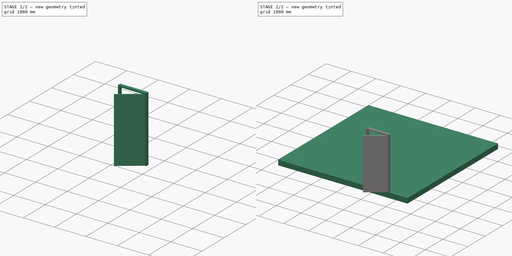
[diagram: build sequence overview — one tinted view per stage of 2, left to right]
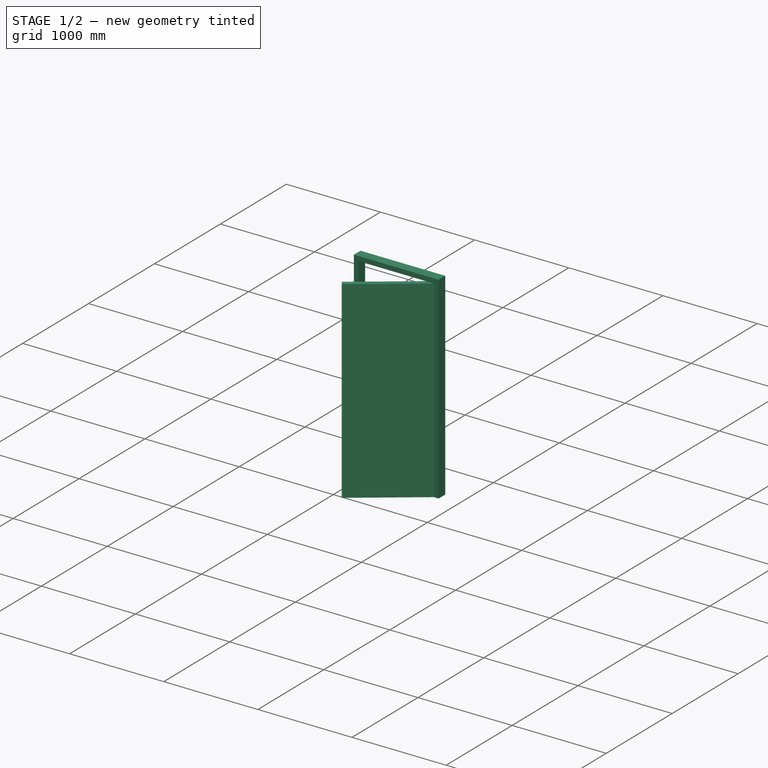
[diagram: stage 1 of 2 — iso view after this stage's code; geometry added in this stage tinted green]
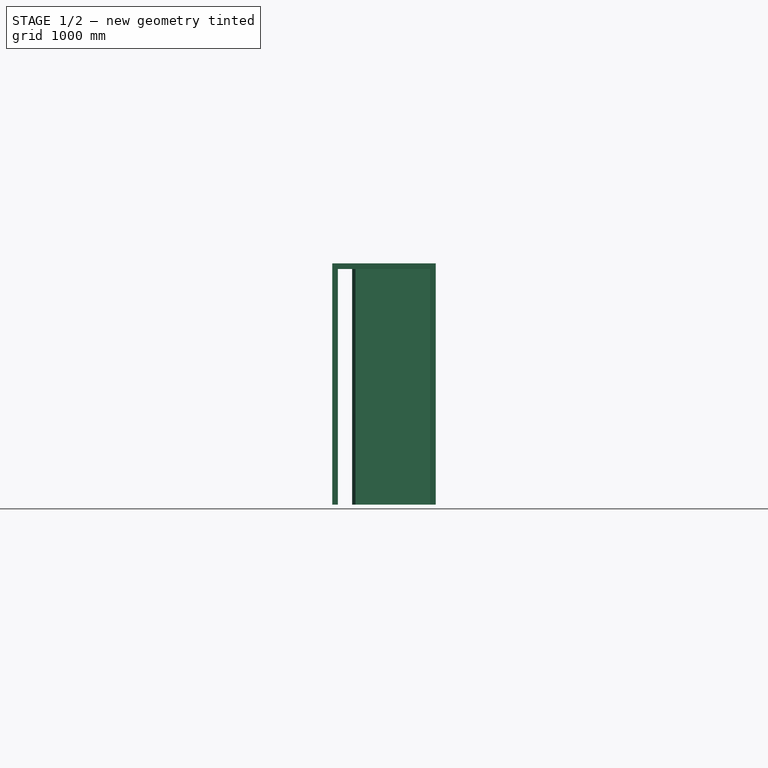
[diagram: stage 1 of 2 — front view after this stage's code; geometry added in this stage tinted green]
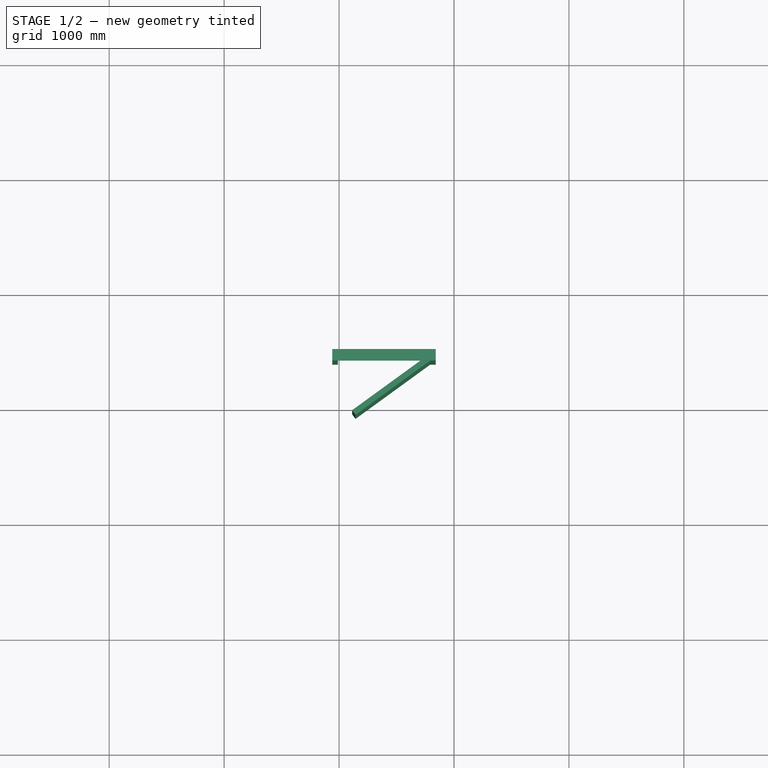
[diagram: stage 1 of 2 — top view after this stage's code; geometry added in this stage tinted green]
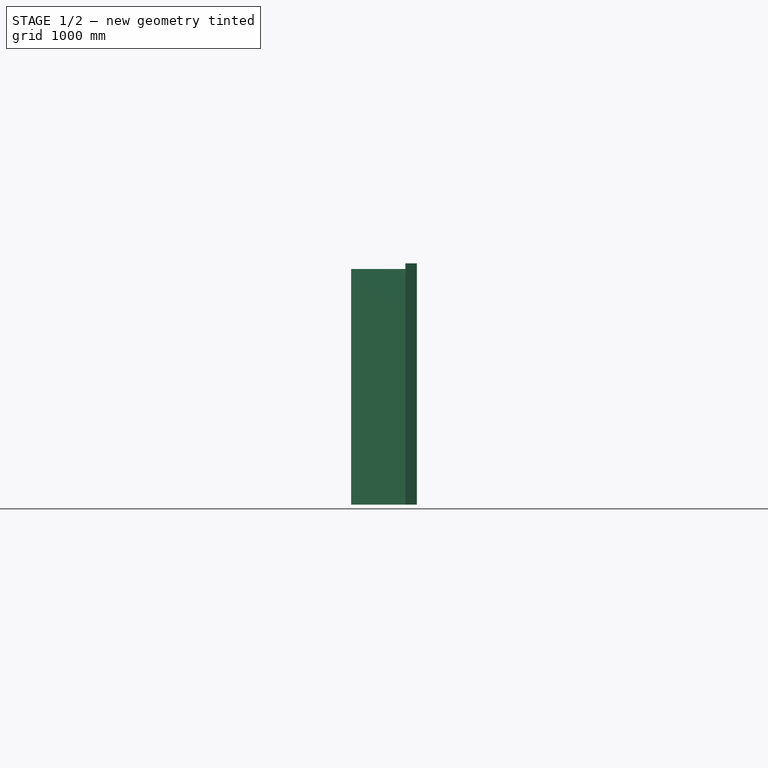
[diagram: stage 1 of 2 — right view after this stage's code; geometry added in this stage tinted green]
FCSTD DOCUMENT  (FreeCAD 1.0R39109 (Git))
Label: room
License: All rights reserved
LicenseURL: https://en.wikipedia.org/wiki/All_rights_reserved
objects: Sketcher::SketchObject×3, Part::FeaturePython×3, App::GeometryPython×2, App::Part×1
note: 11 computed .brp shape members not serialized (recipe doc carries the construction recipe); baked Part::Feature solids carry a one-line shape summary decoded from their .brp

FEATURE [Sketcher::SketchObject] Sketch001
  ArcFitTolerance = 1e-06
  FullyConstrained = true
  MakeInternals = false
  sketch-geometry (5):
    g0: LineSegment StartX=-2500 StartY=2500 StartZ=0 EndX=-2500 EndY=-2500 EndZ=0
    g1: LineSegment StartX=-2500 StartY=-2500 StartZ=0 EndX=2500 EndY=-2500 EndZ=0
    g2: LineSegment StartX=2500 StartY=-2500 StartZ=0 EndX=2500 EndY=2500 EndZ=0
    g3: LineSegment StartX=2500 StartY=2500 StartZ=0 EndX=-2500 EndY=2500 EndZ=0
    g4: GeomPoint [constr] X=-7.4e-15 Y=-2.5e-15 Z=0
  constraints (12):
    c: Coincident(g0,g1)
    c: Coincident(g1,g2)
    c: Coincident(g2,g3)
    c: Coincident(g3,g0)
    c: Vertical(g0)
    c: Vertical(g2)
    c: Horizontal(g1)
    c: Horizontal(g3)
    c: Symmetric(g2,g0,g4)
    c: Coincident(g4,g-1)
    c: DistanceX(g3,g3) = 5000
    c: Equal(g3,g0)
FEATURE [Part::FeaturePython] Wall  label="壁"  # Arch/BIM 166 (typed FeaturePython)
  Align = 2
  ArchSketchData = true
  Area = 60000000
  Base = -> Sketch001
  BlockHeight = 0
  BlockLength = 0
  CountBroken = 0
  CountEntire = 0
  Face = 0
  Height = 3000
  HorizontalArea = 2000000
  IfcData = attributes={"GlobalId": {"name": "GlobalId", "type": "IfcGloballyUniqueId", "is_enum": false, "enum_values": []}, "Description": {"... (+533 chars omitted),+1 more (map truncated)
  IfcType = 166
  Joint = 0
  Length = 20000
  MakeBlocks = false
  MoveBase = false
  MoveWithHost = false
  Normal = (0,0,0)
  OffsetFirst = 0
  OffsetSecond = 0
  PerimeterLength = 40000
  PredefinedType = 0
  VerticalArea = 116640000
  Width = 100
FEATURE [App::GeometryPython] BuildingPart001  label="Level"  # Arch/BIM 14 (typed FeaturePython)
  Area = 0
  CompositionType = 0
  Elevation = 0
  Group = -> [Sketch,Structure,Wall]
  Height = 0
  HeightPropagate = true
  IfcData = attributes={"GlobalId": {"name": "GlobalId", "type": "IfcGloballyUniqueId", "is_enum": false, "enum_values": []}, "Description": {"... (+845 chars omitted),+1 more (map truncated)
  IfcType = 14
  LevelOffset = 0
  LongName = Level
  MaterialsTable = Undefined=0,1,2,3
  OnlySolids = true
  expr: Elevation = .Placement.Base.z
FEATURE [App::GeometryPython] BuildingPart  label="ビルディング"  # Arch/BIM 10 (typed FeaturePython)
  Area = 0
  BuildingType = 0
  CompositionType = 0
  ElevationOfRefHeight = 0
  ElevationOfTerrain = 0
  Group = -> [BuildingPart001]
  Height = 0
  HeightPropagate = true
  IfcData = attributes={"GlobalId": {"name": "GlobalId", "type": "IfcGloballyUniqueId", "is_enum": false, "enum_values": []}, "Description": {"... (+1017 chars omitted),+1 more (map truncated)
  IfcType = 10
  LevelOffset = 0
  LongName = ビルディング
  MaterialsTable = Undefined=0,1,2,3
  OnlySolids = true
FEATURE [Sketcher::SketchObject] Sketch002
  ArcFitTolerance = 1e-06
  FullyConstrained = true
  MakeInternals = false
  Placement = pos=(1841,-2453,0) rot=(0,0.707107,0.707107;3.14159rad)
  sketch-geometry (8):
    g0: LineSegment StartX=0 StartY=0 StartZ=0 EndX=900 EndY=0 EndZ=0
    g1: LineSegment StartX=900 StartY=0 StartZ=0 EndX=900 EndY=2100 EndZ=0
    g2: LineSegment StartX=900 StartY=2100 StartZ=0 EndX=0 EndY=2100 EndZ=0
    g3: LineSegment StartX=0 StartY=2100 StartZ=0 EndX=0 EndY=0 EndZ=0
    g4: LineSegment StartX=49 StartY=0 StartZ=0 EndX=851 EndY=0 EndZ=0
    g5: LineSegment StartX=851 StartY=0 StartZ=0 EndX=851 EndY=2051 EndZ=0
    g6: LineSegment StartX=851 StartY=2051 StartZ=0 EndX=49 EndY=2051 EndZ=0
    g7: LineSegment StartX=49 StartY=2051 StartZ=0 EndX=49 EndY=0 EndZ=0
  constraints (23):
    c: Coincident(g0,g1)
    c: Coincident(g1,g2)
    c: Coincident(g2,g3)
    c: Coincident(g3,g0)
    c: Horizontal(g0)
    c: Horizontal(g2)
    c: Vertical(g1)
    c: Vertical(g3)
    c: Coincident(g4,g5)
    c: Coincident(g5,g6)
    c: Coincident(g6,g7)
    c: Coincident(g7,g4)
    c: Horizontal(g4)
    c: Horizontal(g6)
    c: Vertical(g5)
    c: Vertical(g7)
    c: DistanceY(g1) = 2100  'Height'
    c: DistanceX(g0) = 900  'Width'
    c: DistanceY(g6,g2) = 49  'Frame1'
    c: DistanceX(g2,g6) = 49  'Frame2'
    c: DistanceX(g4,g0) = 49  'Frame3'
    c: DistanceY(g0,g4) = 0
    c: Coincident(g0,g-1)
FEATURE [Part::FeaturePython] Window  label="Door"  # Arch/BIM 41 (typed FeaturePython)
  Area = 1890000
  Base = -> Sketch002
  Frame = 50
  Height = 2100
  HoleDepth = 0
  HoleWire = 0
  HorizontalArea = 0
  Hosts = -> [Wall]
  IfcData = attributes={"GlobalId": {"name": "GlobalId", "type": "IfcGloballyUniqueId", "is_enum": false, "enum_values": []}, "Description": {"... (+1933 chars omitted),+1 more (map truncated)
  IfcType = 41
  LouvreSpacing = 0
  LouvreWidth = 0
  MoveBase = false
  MoveWithHost = true
  Normal = (0,-1,2e-16)
  Offset = 50
  Opening = 40
  OperationType = 0
  OverallHeight = 2100
  OverallWidth = 900
  PerimeterLength = 0
  PredefinedType = 0
  Preset = 6
  SymbolElevation = false
  SymbolPlan = false
  VerticalArea = 0
  Width = 900
  WindowParts = OuterFrame | Frame | Wire0,Wire1 | 50.0+V | 0.00+V | Door | Solid panel | Wire1,Edge8,Mode1 | 50.0 | 50.0+V
  expr: OverallHeight = .Height.Value
  expr: OverallWidth = .Width.Value
FEATURE [App::Part] Part  label="room"
  Group = -> [BuildingPart001,Sketch001,Sketch,Sketch002,Structure,Wall,Window,BuildingPart]
  Origin = -> Origin001
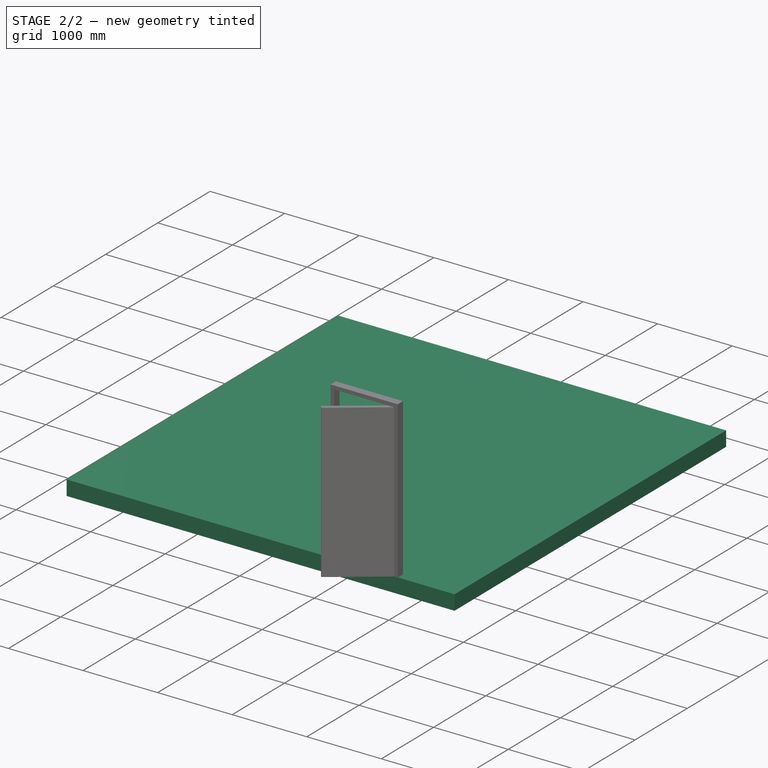
[diagram: stage 2 of 2 — iso view after this stage's code; geometry added in this stage tinted green]
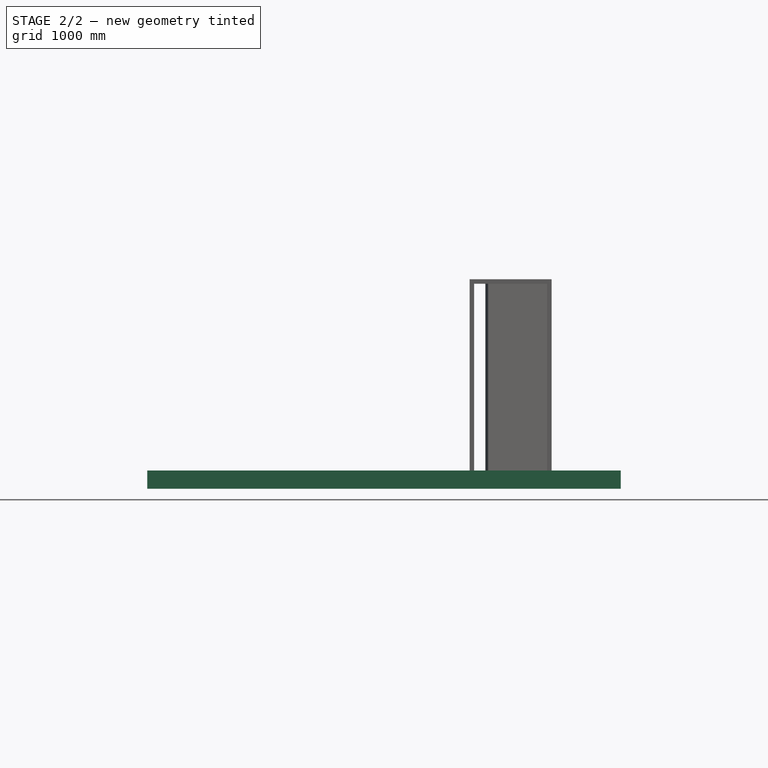
[diagram: stage 2 of 2 — front view after this stage's code; geometry added in this stage tinted green]
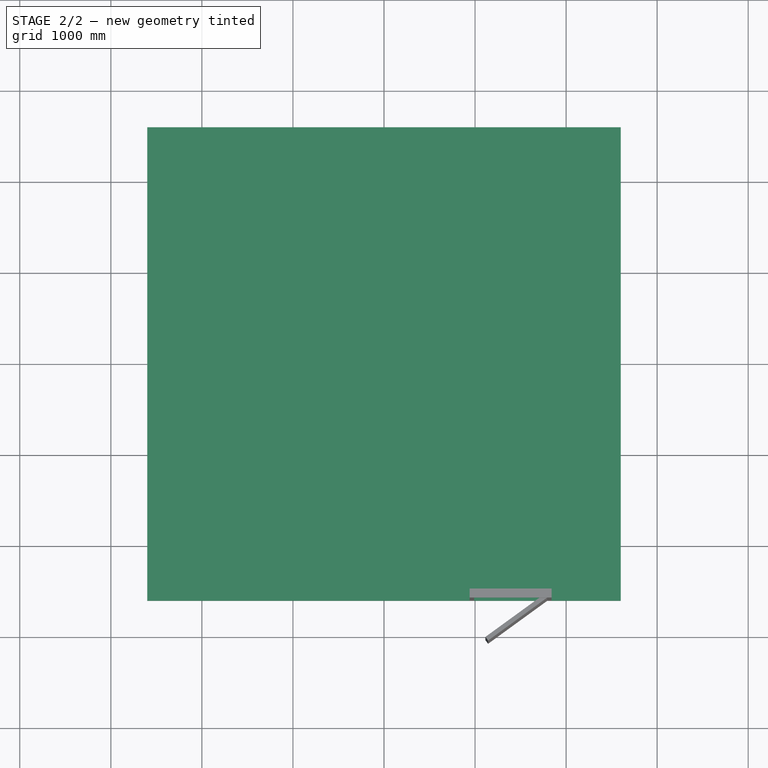
[diagram: stage 2 of 2 — top view after this stage's code; geometry added in this stage tinted green]
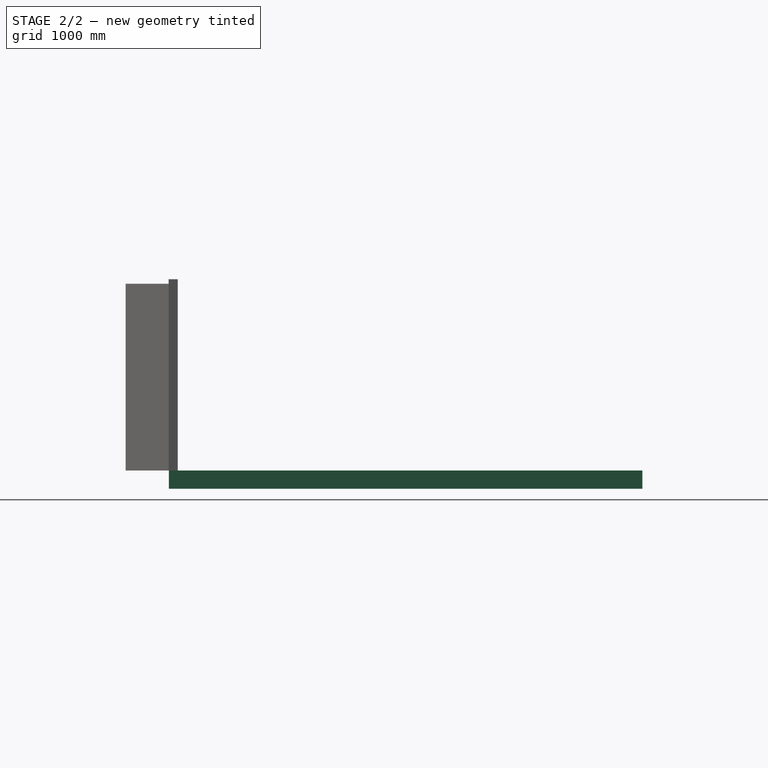
[diagram: stage 2 of 2 — right view after this stage's code; geometry added in this stage tinted green]
FEATURE [Sketcher::SketchObject] Sketch
  ArcFitTolerance = 1e-06
  FullyConstrained = true
  MakeInternals = false
  sketch-geometry (5):
    g0: LineSegment StartX=-2600 StartY=-2600 StartZ=0 EndX=2600 EndY=-2600 EndZ=0
    g1: LineSegment StartX=2600 StartY=-2600 StartZ=0 EndX=2600 EndY=2600 EndZ=0
    g2: LineSegment StartX=2600 StartY=2600 StartZ=0 EndX=-2600 EndY=2600 EndZ=0
    g3: LineSegment StartX=-2600 StartY=2600 StartZ=0 EndX=-2600 EndY=-2600 EndZ=0
    g4: GeomPoint [constr] X=1.53e-14 Y=4.1e-15 Z=0
  constraints (12):
    c: Coincident(g0,g1)
    c: Coincident(g1,g2)
    c: Coincident(g2,g3)
    c: Coincident(g3,g0)
    c: Horizontal(g0)
    c: Horizontal(g2)
    c: Vertical(g1)
    c: Vertical(g3)
    c: Symmetric(g2,g0,g4)
    c: Coincident(g4,g-1)
    c: DistanceX(g2,g2) = 5200
    c: Equal(g2,g3)
FEATURE [Part::FeaturePython] Structure  label="Slab"  # Arch/BIM 118 (typed FeaturePython)
  Base = -> Sketch
  BaseMirror = false
  BaseOffsetX = 0
  BaseOffsetY = 0
  BasePerpendicularToTool = false
  BaseRotation = 0
  ComputedLength = 200
  FaceMaker = 0
  Height = 200
  HorizontalArea = 27040000
  IfcData = attributes={"GlobalId": {"name": "GlobalId", "type": "IfcGloballyUniqueId", "is_enum": false, "enum_values": []}, "Description": {"... (+453 chars omitted),+1 more (map truncated)
  IfcType = 118
  Length = 0
  MoveBase = false
  MoveWithHost = false
  Nodes = (4) [(-2600,-2600,0),(2600,-2600,0),(2600,2600,0),(-2600,2600,0)]
  NodesOffset = 0
  Normal = (0,0,-1)
  PerimeterLength = 20800
  PredefinedType = 0
  ToolOffsetFirst = 0
  ToolOffsetLast = 0
  VerticalArea = 4160000
  Width = 100
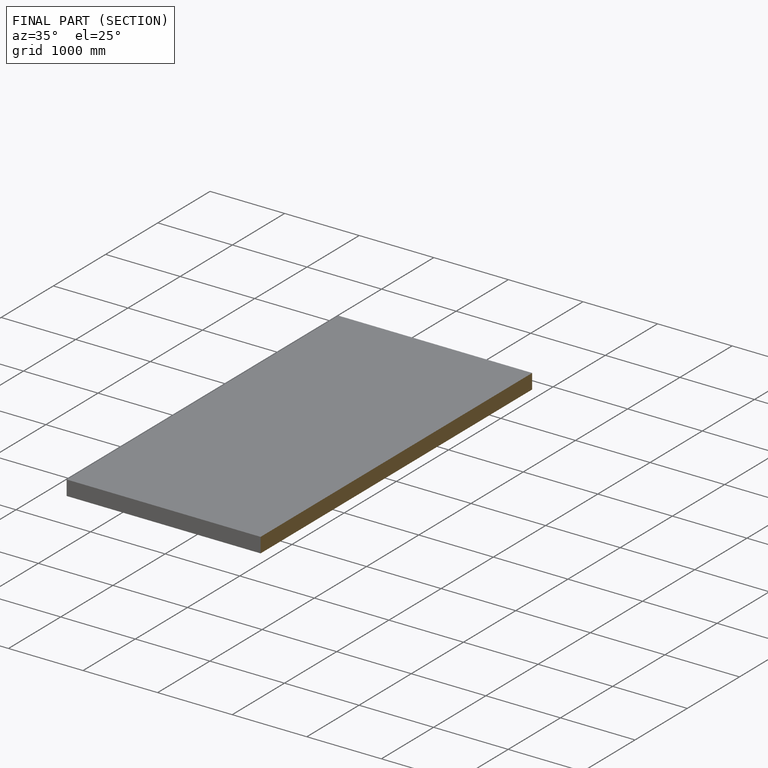
[diagram: finished part — half-section view (interior)]
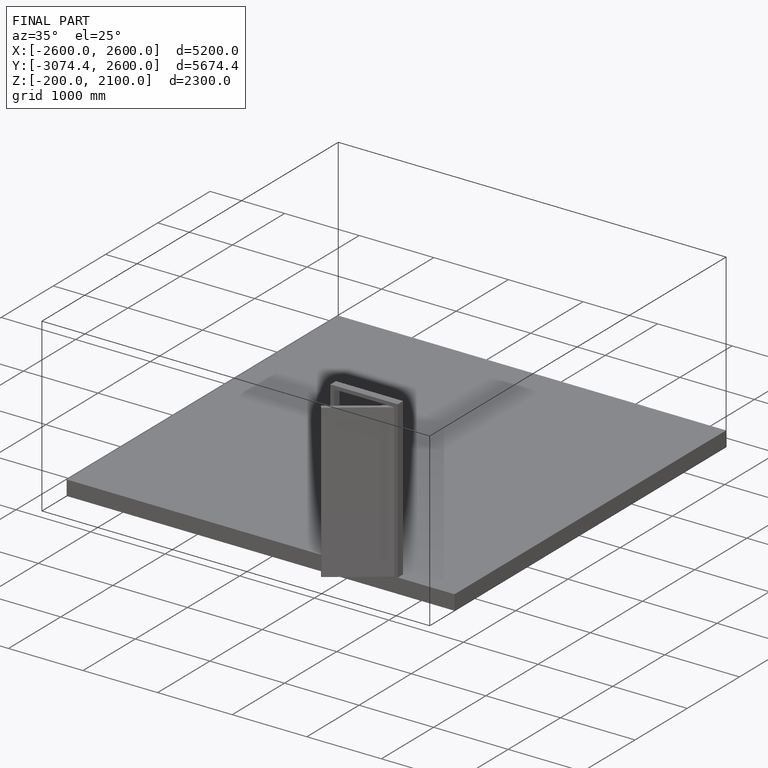
[diagram: finished part — iso view with bounding-box wireframe]
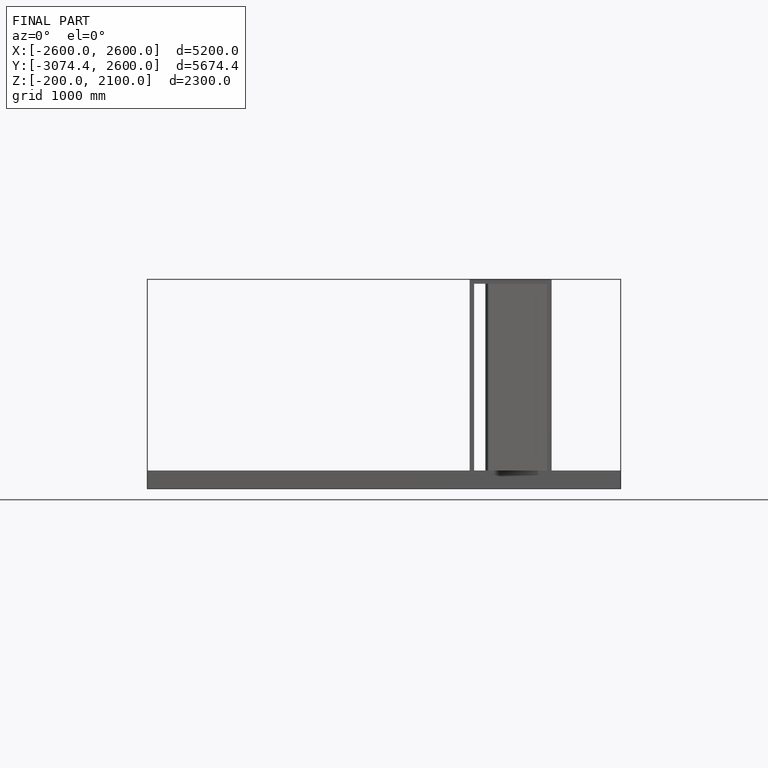
[diagram: finished part — front view with bounding-box wireframe]
